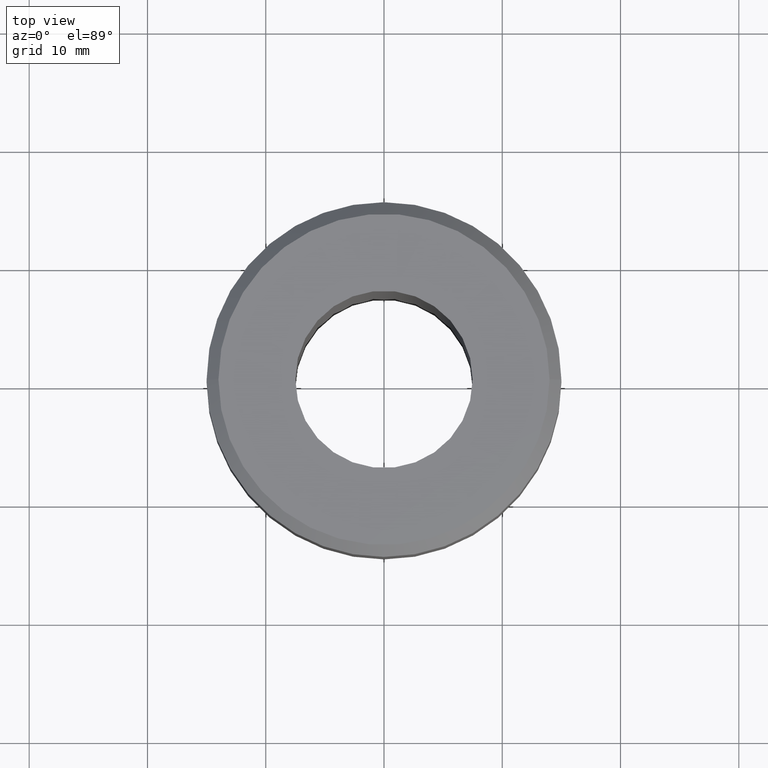
[diagram: clean part render]
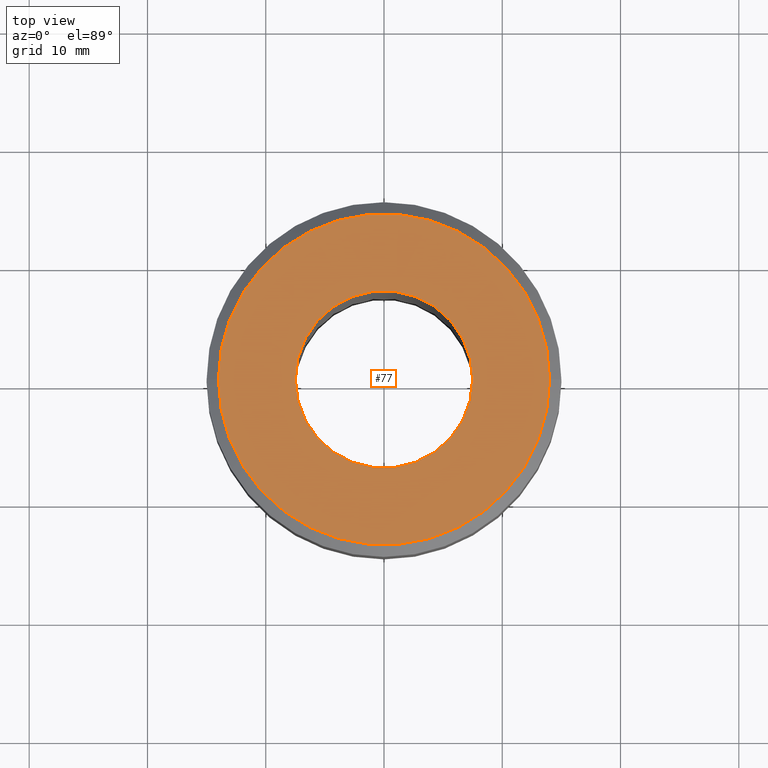
[diagram: same view with one face highlighted and labeled with its STEP entity id]
A machine part, top view. The second image highlights one B-rep face of the part: STEP entity #77.
In plain terms, the highlighted planar face has unit normal (0, -0, 1).
Its self-contained STEP definition (entity closure, byte-faithful):
#12 = EDGE_CURVE ( 'NONE', #225, #246, #251, .T. ) ;
#23 = EDGE_CURVE ( 'NONE', #246, #225, #57, .T. ) ;
#39 = EDGE_CURVE ( 'NONE', #562, #170, #419, .T. ) ;
#51 = DIRECTION ( 'NONE',  ( -0.000000000000000000, -0.000000000000000000, 1.000000000000000000 ) ) ;
#57 = CIRCLE ( 'NONE', #602, 13.99999999999999112 ) ;
#77 = ADVANCED_FACE ( 'NONE', ( #440, #327 ), #743, .T. ) ;
#90 = CARTESIAN_POINT ( 'NONE',  ( 0.000000000000000000, 0.000000000000000000, 0.000000000000000000 ) ) ;
#95 = ORIENTED_EDGE ( 'NONE', *, *, #395, .F. ) ;
#116 = CARTESIAN_POINT ( 'NONE',  ( 0.000000000000000000, 0.000000000000000000, 0.000000000000000000 ) ) ;
#143 = DIRECTION ( 'NONE',  ( 1.000000000000000000, 0.000000000000000000, 0.000000000000000000 ) ) ;
#170 = VERTEX_POINT ( 'NONE', #303 ) ;
#182 = CARTESIAN_POINT ( 'NONE',  ( 13.99999999999999112, 1.775737858763661226E-15, 0.000000000000000000 ) ) ;
#225 = VERTEX_POINT ( 'NONE', #426 ) ;
#230 = CARTESIAN_POINT ( 'NONE',  ( 7.500000000000000000, 0.000000000000000000, 0.000000000000000000 ) ) ;
#246 = VERTEX_POINT ( 'NONE', #182 ) ;
#251 = CIRCLE ( 'NONE', #783, 13.99999999999999112 ) ;
#268 = DIRECTION ( 'NONE',  ( 0.000000000000000000, -0.000000000000000000, 1.000000000000000000 ) ) ;
#271 = CARTESIAN_POINT ( 'NONE',  ( 0.000000000000000000, 0.000000000000000000, 0.000000000000000000 ) ) ;
#291 = AXIS2_PLACEMENT_3D ( 'NONE', #271, #268, #143 ) ;
#303 = CARTESIAN_POINT ( 'NONE',  ( -7.500000000000000000, 9.184850993605145972E-16, 0.000000000000000000 ) ) ;
#322 = AXIS2_PLACEMENT_3D ( 'NONE', #330, #452, #691 ) ;
#327 = FACE_OUTER_BOUND ( 'NONE', #728, .T. ) ;
#330 = CARTESIAN_POINT ( 'NONE',  ( 0.000000000000000000, 0.000000000000000000, 0.000000000000000000 ) ) ;
#334 = DIRECTION ( 'NONE',  ( 1.000000000000000000, 0.000000000000000000, 0.000000000000000000 ) ) ;
#395 = EDGE_CURVE ( 'NONE', #170, #562, #663, .T. ) ;
#398 = DIRECTION ( 'NONE',  ( -0.000000000000000000, -0.000000000000000000, 1.000000000000000000 ) ) ;
#402 = DIRECTION ( 'NONE',  ( 1.000000000000000000, 0.000000000000000000, 0.000000000000000000 ) ) ;
#419 = CIRCLE ( 'NONE', #438, 7.500000000000000000 ) ;
#423 = EDGE_LOOP ( 'NONE', ( #557, #95 ) ) ;
#426 = CARTESIAN_POINT ( 'NONE',  ( -13.99999999999999112, 0.000000000000000000, 0.000000000000000000 ) ) ;
#438 = AXIS2_PLACEMENT_3D ( 'NONE', #116, #51, #478 ) ;
#440 = FACE_BOUND ( 'NONE', #423, .T. ) ;
#452 = DIRECTION ( 'NONE',  ( -0.000000000000000000, -0.000000000000000000, 1.000000000000000000 ) ) ;
#459 = DIRECTION ( 'NONE',  ( -0.000000000000000000, -0.000000000000000000, 1.000000000000000000 ) ) ;
#478 = DIRECTION ( 'NONE',  ( 1.000000000000000000, 0.000000000000000000, 0.000000000000000000 ) ) ;
#557 = ORIENTED_EDGE ( 'NONE', *, *, #39, .F. ) ;
#562 = VERTEX_POINT ( 'NONE', #230 ) ;
#602 = AXIS2_PLACEMENT_3D ( 'NONE', #693, #398, #402 ) ;
#642 = ORIENTED_EDGE ( 'NONE', *, *, #12, .T. ) ;
#663 = CIRCLE ( 'NONE', #322, 7.500000000000000000 ) ;
#691 = DIRECTION ( 'NONE',  ( 1.000000000000000000, 0.000000000000000000, 0.000000000000000000 ) ) ;
#693 = CARTESIAN_POINT ( 'NONE',  ( 0.000000000000000000, 0.000000000000000000, 0.000000000000000000 ) ) ;
#728 = EDGE_LOOP ( 'NONE', ( #642, #785 ) ) ;
#743 = PLANE ( 'NONE',  #291 ) ;
#783 = AXIS2_PLACEMENT_3D ( 'NONE', #90, #459, #334 ) ;
#785 = ORIENTED_EDGE ( 'NONE', *, *, #23, .T. ) ;